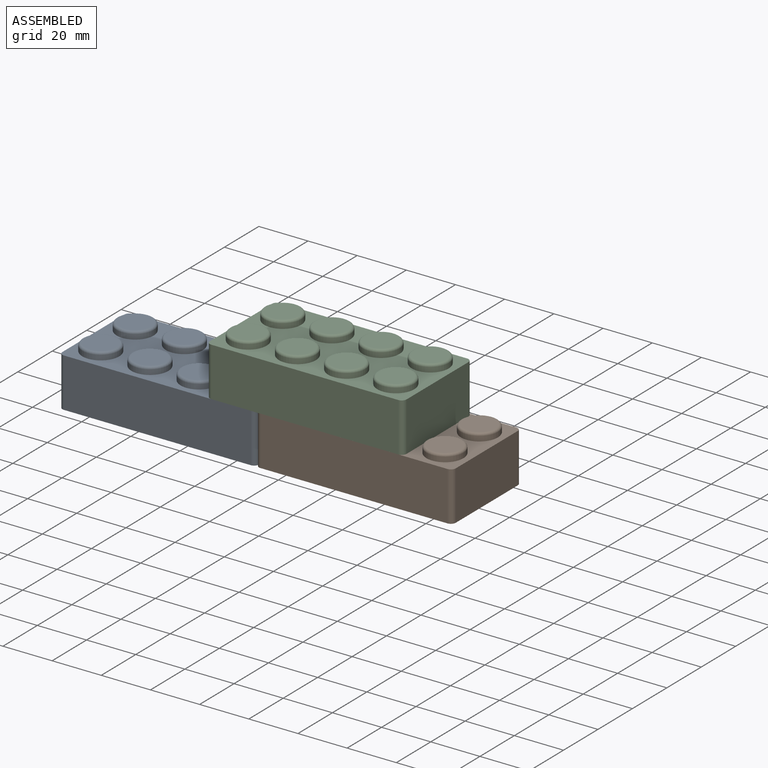
[diagram: assembled view]
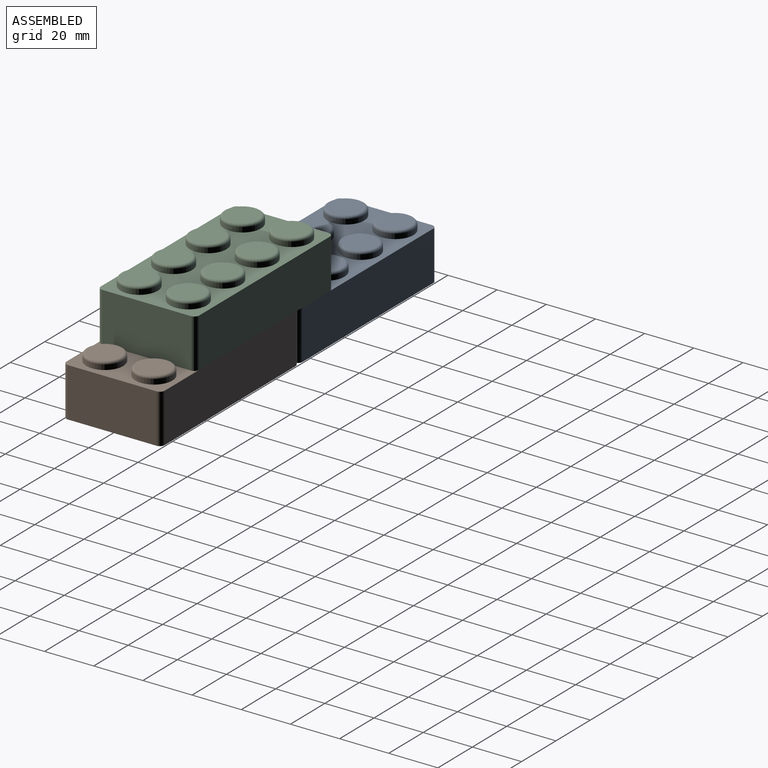
[diagram: assembled view, second angle]
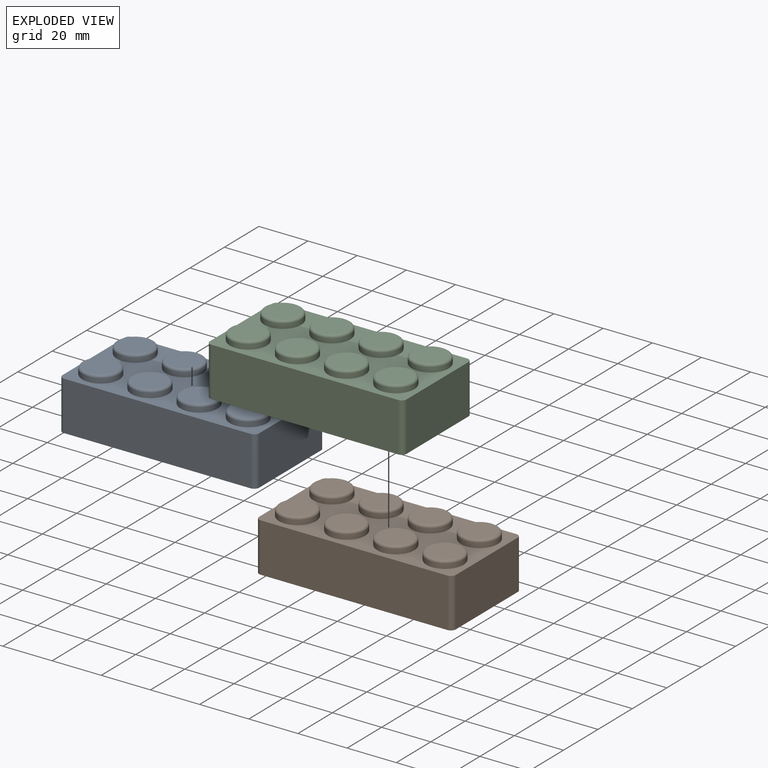
[diagram: exploded view]
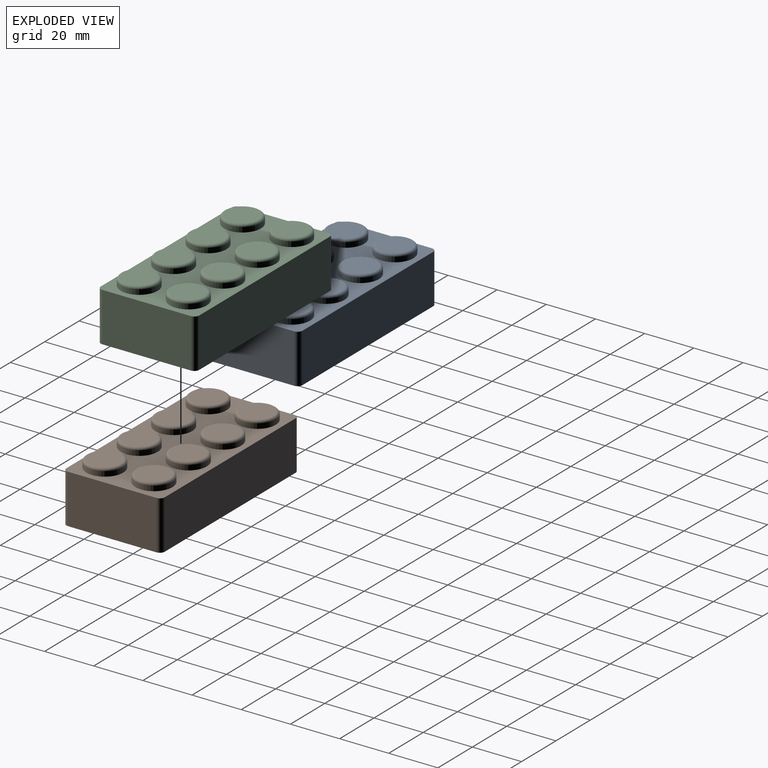
[diagram: exploded view, second angle]
ASSEMBLY  parts=3 mates=2
PART A: 50 faces, bbox 80x40x23 mm
  f0: plane 76x20mm, normal (0,1,0), area 1520mm2, adj f4,f5,f38,f41
  f1: plane 36x20mm, normal (-1,0,0), area 720mm2, adj f4,f5,f38,f39
  f2: plane 76x20mm, normal (0,-1,0), area 1520mm2, adj f4,f5,f39,f40
  f3: plane 36x20mm, normal (1,0,0), area 720mm2, adj f4,f5,f40,f41
  f4: plane 80x40mm, normal (0,0,1), area 1782.8mm2, adj f0,f1,f2,f3,f6,f8,f10,f12
  f5: plane 80x40mm, normal (0,0,-1), area 1782.8mm2, adj f0,f1,f2,f3,f22,f24,f26,f28
  f6: cylinder r=7.5mm len=15mm, axis (0,0,-1), area 94.2mm2, adj f4,f49
  f7: plane 13x13mm, normal (0,0,1), area 132.7mm2, adj f49
  f8: cylinder r=7.5mm len=15mm, axis (0,0,-1), area 94.2mm2, adj f4,f48
  f9: plane 13x13mm, normal (0,0,1), area 132.7mm2, adj f48
  f10: cylinder r=7.5mm len=15mm, axis (0,0,-1), area 94.2mm2, adj f4,f47
  f11: plane 13x13mm, normal (0,0,1), area 132.7mm2, adj f47
  f12: cylinder r=7.5mm len=15mm, axis (0,0,-1), area 94.2mm2, adj f4,f46
  f13: plane 13x13mm, normal (0,0,1), area 132.7mm2, adj f46
  f14: cylinder r=7.5mm len=15mm, axis (0,0,-1), area 94.2mm2, adj f4,f45
  f15: plane 13x13mm, normal (0,0,1), area 132.7mm2, adj f45
  f16: cylinder r=7.5mm len=15mm, axis (0,0,-1), area 94.2mm2, adj f4,f44
  f17: plane 13x13mm, normal (0,0,1), area 132.7mm2, adj f44
  f18: cylinder r=7.5mm len=15mm, axis (0,0,-1), area 94.2mm2, adj f4,f43
  f19: plane 13x13mm, normal (0,0,1), area 132.7mm2, adj f43
  f20: cylinder r=7.5mm len=15mm, axis (0,0,-1), area 94.2mm2, adj f4,f42
  f21: plane 13x13mm, normal (0,0,1), area 132.7mm2, adj f42
  f22: cylinder r=7.5mm len=15mm, axis (0,0,-1), area 164.9mm2, adj f5,f23
  f23: plane 15x15mm, normal (0,0,-1), area 176.7mm2, adj f22
  f24: cylinder r=7.5mm len=15mm, axis (0,0,-1), area 164.9mm2, adj f5,f25
  f25: plane 15x15mm, normal (0,0,-1), area 176.7mm2, adj f24
  f26: cylinder r=7.5mm len=15mm, axis (0,0,-1), area 164.9mm2, adj f5,f27
  f27: plane 15x15mm, normal (0,0,-1), area 176.7mm2, adj f26
  f28: cylinder r=7.5mm len=15mm, axis (0,0,-1), area 164.9mm2, adj f5,f29
  f29: plane 15x15mm, normal (0,0,-1), area 176.7mm2, adj f28
  f30: cylinder r=7.5mm len=15mm, axis (0,0,-1), area 164.9mm2, adj f5,f31
  f31: plane 15x15mm, normal (0,0,-1), area 176.7mm2, adj f30
  f32: cylinder r=7.5mm len=15mm, axis (0,0,-1), area 164.9mm2, adj f5,f33
  f33: plane 15x15mm, normal (0,0,-1), area 176.7mm2, adj f32
  f34: cylinder r=7.5mm len=15mm, axis (0,0,-1), area 164.9mm2, adj f5,f35
  f35: plane 15x15mm, normal (0,0,-1), area 176.7mm2, adj f34
  f36: cylinder r=7.5mm len=15mm, axis (0,0,-1), area 164.9mm2, adj f5,f37
  f37: plane 15x15mm, normal (0,0,-1), area 176.7mm2, adj f36
  f38: cylinder r=2mm len=20mm, axis (0,0,1), area 62.8mm2, adj f0,f1,f4,f5
  f39: cylinder r=2mm len=20mm, axis (0,0,-1), area 62.8mm2, adj f1,f2,f4,f5
  f40: cylinder r=2mm len=20mm, axis (0,0,1), area 62.8mm2, adj f2,f3,f4,f5
  f41: cylinder r=2mm len=20mm, axis (0,0,-1), area 62.8mm2, adj f0,f3,f4,f5
  f42: torus R=6.5mm, axis (0,0,1), area 70.4mm2, adj f20,f21
  f43: torus R=6.5mm, axis (0,0,1), area 70.4mm2, adj f18,f19
  f44: torus R=6.5mm, axis (0,0,1), area 70.4mm2, adj f16,f17
  f45: torus R=6.5mm, axis (0,0,1), area 70.4mm2, adj f14,f15
  f46: torus R=6.5mm, axis (0,0,1), area 70.4mm2, adj f12,f13
  f47: torus R=6.5mm, axis (0,0,1), area 70.4mm2, adj f10,f11
  f48: torus R=6.5mm, axis (0,0,1), area 70.4mm2, adj f8,f9
  f49: torus R=6.5mm, axis (0,0,1), area 70.4mm2, adj f6,f7
PART B: same geometry as A
PART C: same geometry as A
PLACE A t=(-20.85,-9.1,11.73)mm
PLACE B t=(59.15,-9.1,11.73)mm
PLACE C t=(39.15,-9.1,31.73)mm
MATE fastened C.f16 <-> A.f6  axis (0,0,-1) through (9.15,-19.1,21.73)mm
MATE pin_slot B.f18 <-> C.f20  axis (0,0,1) through (29.15,0.9,21.73)mm
